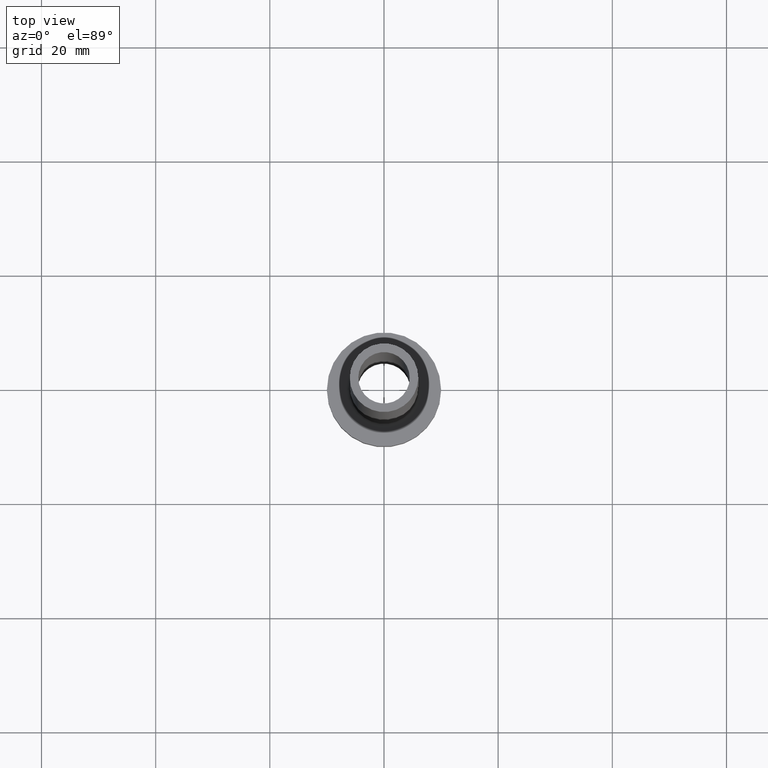
[diagram: clean part render]
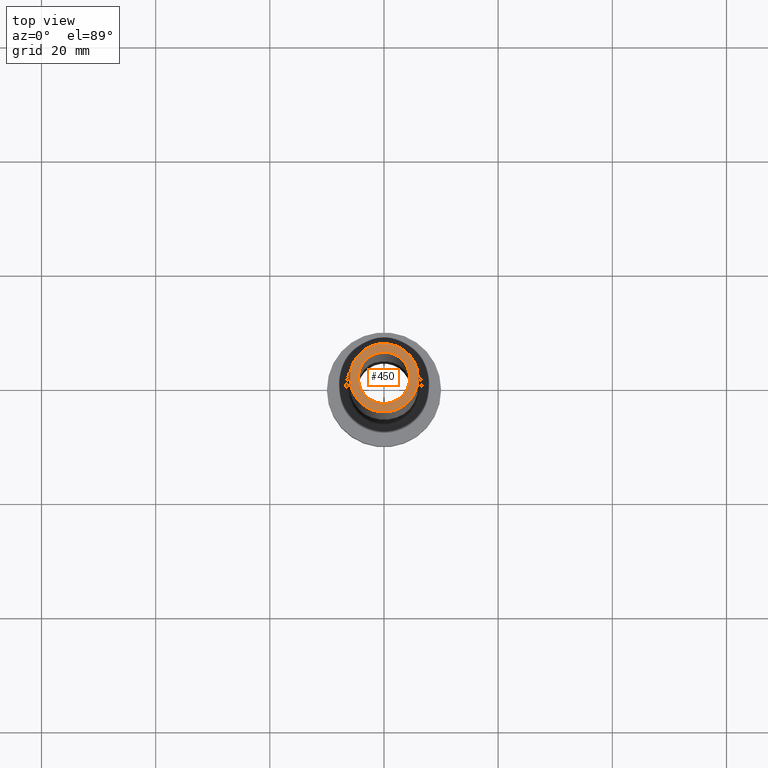
[diagram: same view with one face highlighted and labeled with its STEP entity id]
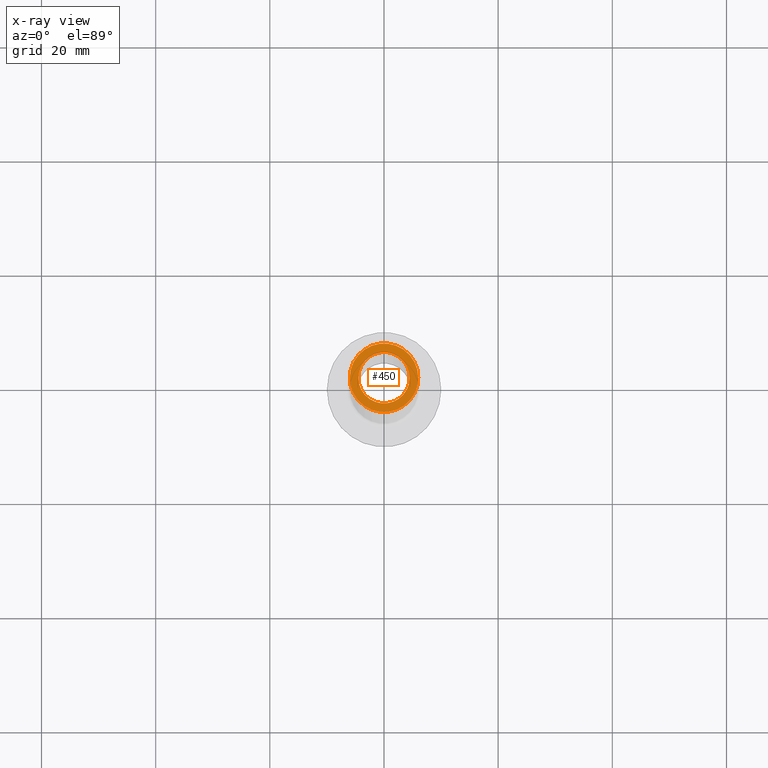
[diagram: x-ray of the same camera — body ghosted, the highlighted face saturated]
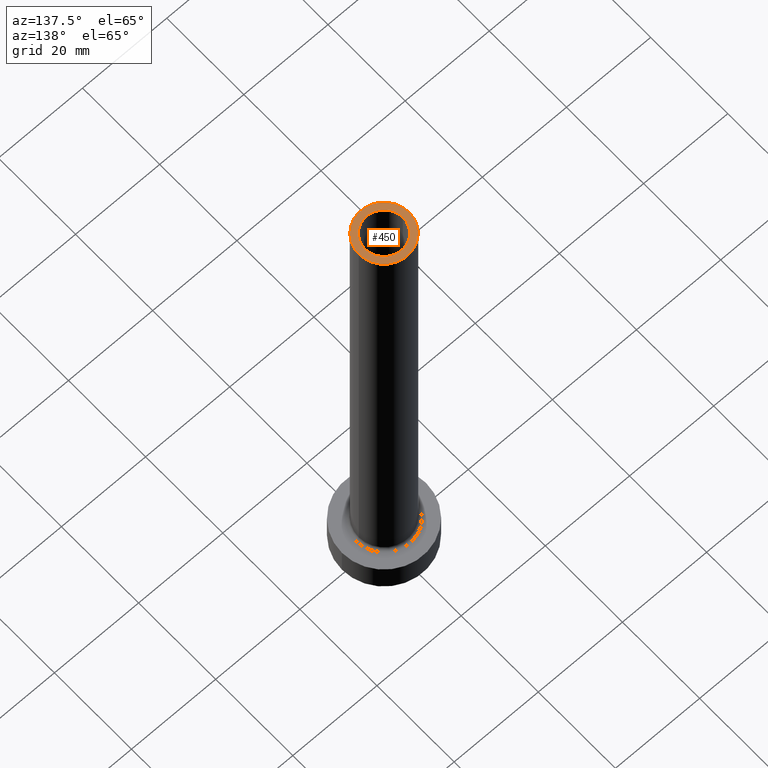
[diagram: same view with one face highlighted and labeled with its STEP entity id]
A machine part, top view. The second image highlights one B-rep face of the part: STEP entity #450.
The next image is the same camera in x-ray: the body ghosted, the highlighted face saturated — about 0% of this face is hidden behind the body in this view.
A second angle (auxiliary view) of the same face is appended — the face is thin or edge-on in the first view.
In plain terms, the highlighted planar face has unit normal (0, 0, 1).
Its self-contained STEP definition (entity closure, byte-faithful):
#15 = VERTEX_POINT ( 'NONE', #198 ) ;
#26 = AXIS2_PLACEMENT_3D ( 'NONE', #43, #147, #73 ) ;
#27 = VERTEX_POINT ( 'NONE', #68 ) ;
#43 = CARTESIAN_POINT ( 'NONE',  ( 0.000000000000000000, 0.000000000000000000, 125.0000000000000000 ) ) ;
#47 = ORIENTED_EDGE ( 'NONE', *, *, #434, .T. ) ;
#49 = AXIS2_PLACEMENT_3D ( 'NONE', #143, #348, #219 ) ;
#55 = CIRCLE ( 'NONE', #446, 4.500000000000000000 ) ;
#65 = CIRCLE ( 'NONE', #163, 4.500000000000000000 ) ;
#68 = CARTESIAN_POINT ( 'NONE',  ( 4.500000000000000000, 5.510910596163087583E-16, 125.0000000000000000 ) ) ;
#71 = DIRECTION ( 'NONE',  ( 0.000000000000000000, 0.000000000000000000, 1.000000000000000000 ) ) ;
#73 = DIRECTION ( 'NONE',  ( 1.000000000000000000, 0.000000000000000000, 0.000000000000000000 ) ) ;
#79 = FACE_OUTER_BOUND ( 'NONE', #398, .T. ) ;
#93 = EDGE_CURVE ( 'NONE', #268, #15, #313, .T. ) ;
#97 = CARTESIAN_POINT ( 'NONE',  ( 6.000000000000000888, 7.347880794884120722E-16, 125.0000000000000000 ) ) ;
#119 = CARTESIAN_POINT ( 'NONE',  ( -4.500000000000000000, 0.000000000000000000, 125.0000000000000000 ) ) ;
#132 = ORIENTED_EDGE ( 'NONE', *, *, #93, .T. ) ;
#143 = CARTESIAN_POINT ( 'NONE',  ( 0.000000000000000000, 0.000000000000000000, 125.0000000000000000 ) ) ;
#146 = DIRECTION ( 'NONE',  ( 0.000000000000000000, 0.000000000000000000, 1.000000000000000000 ) ) ;
#147 = DIRECTION ( 'NONE',  ( 0.000000000000000000, 0.000000000000000000, 1.000000000000000000 ) ) ;
#163 = AXIS2_PLACEMENT_3D ( 'NONE', #379, #71, #209 ) ;
#184 = CARTESIAN_POINT ( 'NONE',  ( 0.000000000000000000, 0.000000000000000000, 125.0000000000000000 ) ) ;
#189 = ORIENTED_EDGE ( 'NONE', *, *, #321, .F. ) ;
#197 = VERTEX_POINT ( 'NONE', #119 ) ;
#198 = CARTESIAN_POINT ( 'NONE',  ( -6.000000000000000888, 0.000000000000000000, 125.0000000000000000 ) ) ;
#206 = EDGE_LOOP ( 'NONE', ( #438, #189 ) ) ;
#209 = DIRECTION ( 'NONE',  ( 1.000000000000000000, 0.000000000000000000, 0.000000000000000000 ) ) ;
#219 = DIRECTION ( 'NONE',  ( 1.000000000000000000, 0.000000000000000000, -0.000000000000000000 ) ) ;
#229 = CIRCLE ( 'NONE', #324, 6.000000000000000888 ) ;
#268 = VERTEX_POINT ( 'NONE', #97 ) ;
#305 = CARTESIAN_POINT ( 'NONE',  ( 0.000000000000000000, 0.000000000000000000, 125.0000000000000000 ) ) ;
#313 = CIRCLE ( 'NONE', #26, 6.000000000000000888 ) ;
#314 = FACE_BOUND ( 'NONE', #206, .T. ) ;
#316 = DIRECTION ( 'NONE',  ( 1.000000000000000000, 0.000000000000000000, 0.000000000000000000 ) ) ;
#321 = EDGE_CURVE ( 'NONE', #27, #197, #55, .T. ) ;
#324 = AXIS2_PLACEMENT_3D ( 'NONE', #184, #146, #316 ) ;
#348 = DIRECTION ( 'NONE',  ( 0.000000000000000000, 0.000000000000000000, 1.000000000000000000 ) ) ;
#349 = EDGE_CURVE ( 'NONE', #197, #27, #65, .T. ) ;
#370 = DIRECTION ( 'NONE',  ( 1.000000000000000000, 0.000000000000000000, 0.000000000000000000 ) ) ;
#379 = CARTESIAN_POINT ( 'NONE',  ( 0.000000000000000000, 0.000000000000000000, 125.0000000000000000 ) ) ;
#398 = EDGE_LOOP ( 'NONE', ( #47, #132 ) ) ;
#423 = PLANE ( 'NONE',  #49 ) ;
#434 = EDGE_CURVE ( 'NONE', #15, #268, #229, .T. ) ;
#438 = ORIENTED_EDGE ( 'NONE', *, *, #349, .F. ) ;
#441 = DIRECTION ( 'NONE',  ( 0.000000000000000000, 0.000000000000000000, 1.000000000000000000 ) ) ;
#446 = AXIS2_PLACEMENT_3D ( 'NONE', #305, #441, #370 ) ;
#450 = ADVANCED_FACE ( 'NONE', ( #314, #79 ), #423, .T. ) ;